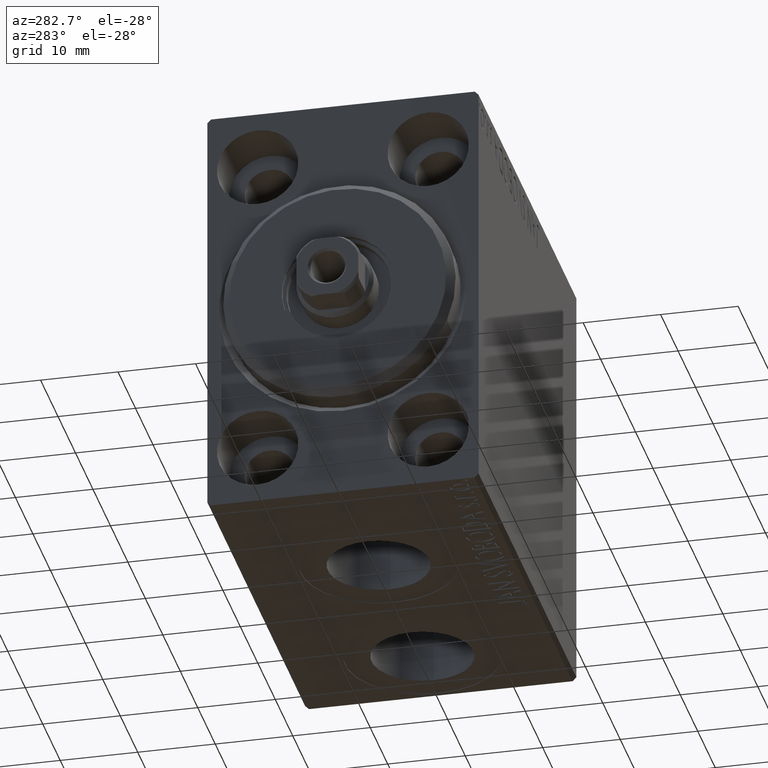
[diagram: clean part render]
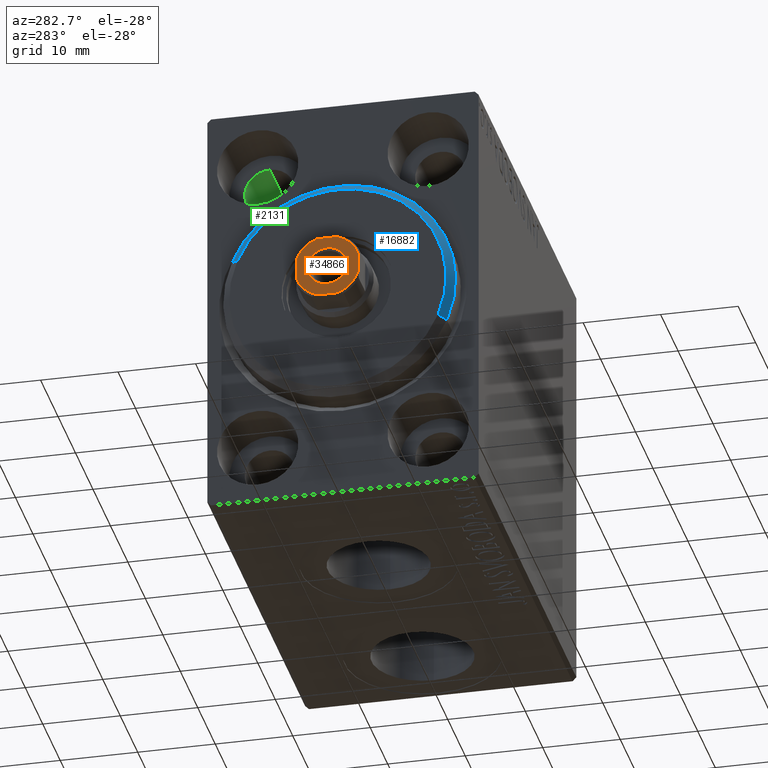
[diagram: same view with three faces highlighted in distinct colors, each labeled with its STEP entity id]
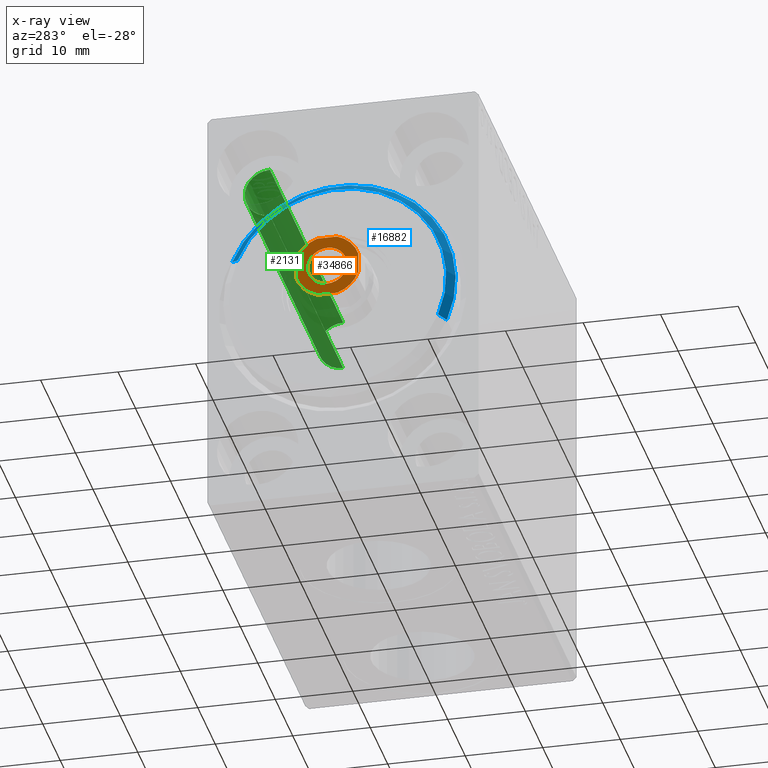
[diagram: x-ray of the same camera — body ghosted, the three highlighted faces saturated]
A machine part, auxiliary view with three faces highlighted in distinct colors.
The next image is the same camera in x-ray (body ghosted, the three faces saturated) — at least one of them is partly hidden behind the body in this view.
Their STEP definitions:

[orange] entity #34866 — the highlighted planar face has unit normal (-1, 0, 0).
#59 = CARTESIAN_POINT ( 'NONE',  ( 0.000000000000000000, 0.000000000000000000, 60.00000000000000000 ) ) ;
#228 = EDGE_LOOP ( 'NONE', ( #32844, #24968 ) ) ;
#1085 = AXIS2_PLACEMENT_3D ( 'NONE', #2974, #6763, #33279 ) ;
#1504 = ORIENTED_EDGE ( 'NONE', *, *, #43617, .T. ) ;
#1800 = DIRECTION ( 'NONE',  ( -1.084202172485504434E-16, 1.000000000000000000, -0.000000000000000000 ) ) ;
#2950 = VECTOR ( 'NONE', #19012, 1000.000000000000000 ) ;
#2974 = CARTESIAN_POINT ( 'NONE',  ( 0.000000000000000000, 0.000000000000000000, 60.00000000000000000 ) ) ;
#3173 = CARTESIAN_POINT ( 'NONE',  ( 4.000000000000001776, -1.280624847486520279, 60.00000000000000000 ) ) ;
#3801 = CIRCLE ( 'NONE', #39343, 4.199999999999985967 ) ;
#4405 = VECTOR ( 'NONE', #27248, 1000.000000000000000 ) ;
#4622 = VECTOR ( 'NONE', #1800, 1000.000000000000000 ) ;
#5967 = CARTESIAN_POINT ( 'NONE',  ( 0.000000000000000000, 0.000000000000000000, 60.00000000000000000 ) ) ;
#5996 = FACE_OUTER_BOUND ( 'NONE', #41414, .T. ) ;
#6103 = CIRCLE ( 'NONE', #36693, 4.200000000000005507 ) ;
#6621 = DIRECTION ( 'NONE',  ( 1.000000000000000000, 0.000000000000000000, 0.000000000000000000 ) ) ;
#6763 = DIRECTION ( 'NONE',  ( -0.000000000000000000, 0.000000000000000000, 1.000000000000000000 ) ) ;
#7134 = CARTESIAN_POINT ( 'NONE',  ( -1.280624847486594442, 3.999999999999998224, 60.00000000000000000 ) ) ;
#7189 = VERTEX_POINT ( 'NONE', #24505 ) ;
#7243 = EDGE_CURVE ( 'NONE', #23258, #43874, #8914, .T. ) ;
#7263 = VERTEX_POINT ( 'NONE', #35877 ) ;
#7332 = AXIS2_PLACEMENT_3D ( 'NONE', #5967, #9294, #6621 ) ;
#7865 = AXIS2_PLACEMENT_3D ( 'NONE', #9476, #22198, #12812 ) ;
#7887 = CARTESIAN_POINT ( 'NONE',  ( 1.280624847486517393, -4.000000000000001776, 60.00000000000000000 ) ) ;
#8001 = ORIENTED_EDGE ( 'NONE', *, *, #11364, .T. ) ;
#8247 = CIRCLE ( 'NONE', #40953, 4.200000000000008171 ) ;
#8371 = VERTEX_POINT ( 'NONE', #3173 ) ;
#8415 = VERTEX_POINT ( 'NONE', #17635 ) ;
#8538 = CARTESIAN_POINT ( 'NONE',  ( 1.280624847486559359, 3.999999999999999112, 60.00000000000000000 ) ) ;
#8914 = LINE ( 'NONE', #11807, #31346 ) ;
#9210 = EDGE_CURVE ( 'NONE', #7189, #30992, #34906, .T. ) ;
#9294 = DIRECTION ( 'NONE',  ( 0.000000000000000000, -0.000000000000000000, -1.000000000000000000 ) ) ;
#9461 = CIRCLE ( 'NONE', #7332, 2.549999999999989608 ) ;
#9476 = CARTESIAN_POINT ( 'NONE',  ( 0.000000000000000000, 0.000000000000000000, 60.00000000000000000 ) ) ;
#10165 = EDGE_CURVE ( 'NONE', #22549, #8415, #15444, .T. ) ;
#11364 = EDGE_CURVE ( 'NONE', #11573, #24837, #16819, .T. ) ;
#11392 = CARTESIAN_POINT ( 'NONE',  ( -2.549999999999989608, 3.122849337825738093E-16, 60.00000000000000000 ) ) ;
#11573 = VERTEX_POINT ( 'NONE', #22506 ) ;
#11807 = CARTESIAN_POINT ( 'NONE',  ( -3.999999999999999112, 3.999999999999998224, 60.00000000000000000 ) ) ;
#12212 = DIRECTION ( 'NONE',  ( -0.000000000000000000, 0.000000000000000000, 1.000000000000000000 ) ) ;
#12812 = DIRECTION ( 'NONE',  ( 1.000000000000000000, 0.000000000000000000, 0.000000000000000000 ) ) ;
#13084 = DIRECTION ( 'NONE',  ( 1.000000000000000000, 0.000000000000000000, 0.000000000000000000 ) ) ;
#13627 = DIRECTION ( 'NONE',  ( 1.000000000000000000, 0.000000000000000000, 0.000000000000000000 ) ) ;
#13853 = CARTESIAN_POINT ( 'NONE',  ( 0.000000000000000000, 0.000000000000000000, 60.00000000000000000 ) ) ;
#15274 = EDGE_CURVE ( 'NONE', #30992, #7189, #9461, .T. ) ;
#15380 = FACE_BOUND ( 'NONE', #228, .T. ) ;
#15444 = LINE ( 'NONE', #25221, #2950 ) ;
#15588 = PLANE ( 'NONE',  #39400 ) ;
#16819 = LINE ( 'NONE', #34160, #4405 ) ;
#17222 = DIRECTION ( 'NONE',  ( -0.000000000000000000, 0.000000000000000000, 1.000000000000000000 ) ) ;
#17635 = CARTESIAN_POINT ( 'NONE',  ( -3.999999999999999112, -1.280624847486601103, 60.00000000000000000 ) ) ;
#18230 = ORIENTED_EDGE ( 'NONE', *, *, #10165, .T. ) ;
#19012 = DIRECTION ( 'NONE',  ( 1.084202172485504434E-16, -1.000000000000000000, 0.000000000000000000 ) ) ;
#19174 = LINE ( 'NONE', #32545, #4622 ) ;
#21351 = ORIENTED_EDGE ( 'NONE', *, *, #37960, .T. ) ;
#22198 = DIRECTION ( 'NONE',  ( 0.000000000000000000, -0.000000000000000000, -1.000000000000000000 ) ) ;
#22506 = CARTESIAN_POINT ( 'NONE',  ( -1.280624847486591555, -4.000000000000001776, 60.00000000000000000 ) ) ;
#22549 = VERTEX_POINT ( 'NONE', #34188 ) ;
#23258 = VERTEX_POINT ( 'NONE', #8538 ) ;
#24505 = CARTESIAN_POINT ( 'NONE',  ( 2.549999999999989608, 0.000000000000000000, 60.00000000000000000 ) ) ;
#24837 = VERTEX_POINT ( 'NONE', #7887 ) ;
#24968 = ORIENTED_EDGE ( 'NONE', *, *, #15274, .T. ) ;
#25221 = CARTESIAN_POINT ( 'NONE',  ( -3.999999999999999112, 3.999999999999998224, 60.00000000000000000 ) ) ;
#25596 = CARTESIAN_POINT ( 'NONE',  ( 0.000000000000000000, 0.000000000000000000, 60.00000000000000000 ) ) ;
#25711 = ORIENTED_EDGE ( 'NONE', *, *, #40772, .T. ) ;
#25776 = EDGE_CURVE ( 'NONE', #7263, #23258, #30961, .T. ) ;
#26254 = ORIENTED_EDGE ( 'NONE', *, *, #25776, .T. ) ;
#27248 = DIRECTION ( 'NONE',  ( 1.000000000000000000, 0.000000000000000000, 0.000000000000000000 ) ) ;
#28451 = ORIENTED_EDGE ( 'NONE', *, *, #7243, .T. ) ;
#29158 = DIRECTION ( 'NONE',  ( -0.000000000000000000, 0.000000000000000000, 1.000000000000000000 ) ) ;
#30776 = DIRECTION ( 'NONE',  ( -0.000000000000000000, 0.000000000000000000, 1.000000000000000000 ) ) ;
#30961 = CIRCLE ( 'NONE', #1085, 4.199999999999995737 ) ;
#30992 = VERTEX_POINT ( 'NONE', #11392 ) ;
#31346 = VECTOR ( 'NONE', #32312, 1000.000000000000000 ) ;
#32312 = DIRECTION ( 'NONE',  ( -1.000000000000000000, -1.084202172485504434E-16, -0.000000000000000000 ) ) ;
#32545 = CARTESIAN_POINT ( 'NONE',  ( 4.000000000000000888, 3.999999999999999112, 60.00000000000000000 ) ) ;
#32575 = EDGE_CURVE ( 'NONE', #24837, #8371, #3801, .T. ) ;
#32844 = ORIENTED_EDGE ( 'NONE', *, *, #9210, .T. ) ;
#33279 = DIRECTION ( 'NONE',  ( 1.000000000000000000, 0.000000000000000000, 0.000000000000000000 ) ) ;
#34160 = CARTESIAN_POINT ( 'NONE',  ( -3.999999999999998224, -4.000000000000001776, 60.00000000000000000 ) ) ;
#34188 = CARTESIAN_POINT ( 'NONE',  ( -3.999999999999999112, 1.280624847486591555, 60.00000000000000000 ) ) ;
#34594 = DIRECTION ( 'NONE',  ( 1.000000000000000000, 0.000000000000000000, 0.000000000000000000 ) ) ;
#34866 = ADVANCED_FACE ( 'NONE', ( #15380, #5996 ), #15588, .T. ) ;
#34906 = CIRCLE ( 'NONE', #7865, 2.549999999999989608 ) ;
#35877 = CARTESIAN_POINT ( 'NONE',  ( 4.000000000000000888, 1.280624847486552031, 60.00000000000000000 ) ) ;
#36077 = DIRECTION ( 'NONE',  ( 1.000000000000000000, 0.000000000000000000, 0.000000000000000000 ) ) ;
#36693 = AXIS2_PLACEMENT_3D ( 'NONE', #13853, #30776, #13627 ) ;
#37781 = ORIENTED_EDGE ( 'NONE', *, *, #32575, .T. ) ;
#37960 = EDGE_CURVE ( 'NONE', #43874, #22549, #6103, .T. ) ;
#39343 = AXIS2_PLACEMENT_3D ( 'NONE', #43589, #12212, #13084 ) ;
#39400 = AXIS2_PLACEMENT_3D ( 'NONE', #25596, #29158, #36077 ) ;
#40772 = EDGE_CURVE ( 'NONE', #8371, #7263, #19174, .T. ) ;
#40953 = AXIS2_PLACEMENT_3D ( 'NONE', #59, #17222, #34594 ) ;
#41414 = EDGE_LOOP ( 'NONE', ( #25711, #26254, #28451, #21351, #18230, #1504, #8001, #37781 ) ) ;
#43589 = CARTESIAN_POINT ( 'NONE',  ( 0.000000000000000000, 0.000000000000000000, 60.00000000000000000 ) ) ;
#43617 = EDGE_CURVE ( 'NONE', #8415, #11573, #8247, .T. ) ;
#43874 = VERTEX_POINT ( 'NONE', #7134 ) ;

[blue] entity #16882 — the highlighted conical surface has half-angle 45 deg.
#736 = AXIS2_PLACEMENT_3D ( 'NONE', #29094, #21536, #4817 ) ;
#1158 = DIRECTION ( 'NONE',  ( -1.000000000000000000, 0.000000000000000000, 0.000000000000000000 ) ) ;
#1615 = VECTOR ( 'NONE', #18366, 999.9999999999998863 ) ;
#3093 = EDGE_CURVE ( 'NONE', #38357, #33130, #22113, .T. ) ;
#4817 = DIRECTION ( 'NONE',  ( 0.000000000000000000, 0.000000000000000000, -1.000000000000000000 ) ) ;
#7279 = DIRECTION ( 'NONE',  ( -0.7071067811865482389, 8.659560562354926695E-17, -0.7071067811865469066 ) ) ;
#8980 = EDGE_CURVE ( 'NONE', #33130, #21298, #30241, .T. ) ;
#9101 = CARTESIAN_POINT ( 'NONE',  ( 3.000000000000000000, 0.000000000000000000, 13.99999999999999645 ) ) ;
#10849 = CIRCLE ( 'NONE', #11583, 15.00000000000000000 ) ;
#10915 = CONICAL_SURFACE ( 'NONE', #41487, 13.99999999999999645, 0.7853981633974473908 ) ;
#11370 = EDGE_LOOP ( 'NONE', ( #36238, #27068, #29171, #35979 ) ) ;
#11583 = AXIS2_PLACEMENT_3D ( 'NONE', #35467, #1158, #28322 ) ;
#12271 = FACE_OUTER_BOUND ( 'NONE', #11370, .T. ) ;
#15721 = VECTOR ( 'NONE', #7279, 999.9999999999998863 ) ;
#16882 = ADVANCED_FACE ( 'NONE', ( #12271 ), #10915, .T. ) ;
#17542 = CARTESIAN_POINT ( 'NONE',  ( 3.000000000000000000, 1.714505518806294244E-15, -13.99999999999999645 ) ) ;
#18366 = DIRECTION ( 'NONE',  ( -0.7071067811865482389, 0.000000000000000000, 0.7071067811865469066 ) ) ;
#21298 = VERTEX_POINT ( 'NONE', #44069 ) ;
#21526 = CARTESIAN_POINT ( 'NONE',  ( 1.999999999999995781, 0.000000000000000000, 15.00000000000000000 ) ) ;
#21536 = DIRECTION ( 'NONE',  ( 1.000000000000000000, -0.000000000000000000, 0.000000000000000000 ) ) ;
#21692 = VERTEX_POINT ( 'NONE', #21526 ) ;
#22113 = CIRCLE ( 'NONE', #736, 13.99999999999999645 ) ;
#26084 = DIRECTION ( 'NONE',  ( 0.000000000000000000, 0.000000000000000000, 1.000000000000000000 ) ) ;
#27068 = ORIENTED_EDGE ( 'NONE', *, *, #3093, .F. ) ;
#28322 = DIRECTION ( 'NONE',  ( 0.000000000000000000, 0.000000000000000000, -1.000000000000000000 ) ) ;
#29094 = CARTESIAN_POINT ( 'NONE',  ( 3.000000000000000000, 0.000000000000000000, 0.000000000000000000 ) ) ;
#29171 = ORIENTED_EDGE ( 'NONE', *, *, #30746, .T. ) ;
#30241 = LINE ( 'NONE', #17542, #15721 ) ;
#30746 = EDGE_CURVE ( 'NONE', #38357, #21692, #41950, .T. ) ;
#30949 = EDGE_CURVE ( 'NONE', #21298, #21692, #10849, .T. ) ;
#31275 = CARTESIAN_POINT ( 'NONE',  ( 3.000000000000000000, 1.775737858763662015E-15, -13.99999999999999645 ) ) ;
#33130 = VERTEX_POINT ( 'NONE', #31275 ) ;
#33220 = CARTESIAN_POINT ( 'NONE',  ( 3.000000000000000000, 0.000000000000000000, 0.000000000000000000 ) ) ;
#35467 = CARTESIAN_POINT ( 'NONE',  ( 1.999999999999995781, 0.000000000000000000, 0.000000000000000000 ) ) ;
#35979 = ORIENTED_EDGE ( 'NONE', *, *, #30949, .F. ) ;
#36238 = ORIENTED_EDGE ( 'NONE', *, *, #8980, .F. ) ;
#38357 = VERTEX_POINT ( 'NONE', #9101 ) ;
#38398 = CARTESIAN_POINT ( 'NONE',  ( 3.000000000000000000, 0.000000000000000000, 13.99999999999999645 ) ) ;
#40307 = DIRECTION ( 'NONE',  ( -1.000000000000000000, 0.000000000000000000, 0.000000000000000000 ) ) ;
#41487 = AXIS2_PLACEMENT_3D ( 'NONE', #33220, #40307, #26084 ) ;
#41950 = LINE ( 'NONE', #38398, #1615 ) ;
#44069 = CARTESIAN_POINT ( 'NONE',  ( 1.999999999999995781, 1.836970198721029589E-15, -15.00000000000000000 ) ) ;

[green] entity #2131 — the highlighted cylindrical surface (edge-blend (fillet) strip) has radius 3.25 mm, axis along (-1, -0, -0).
#1093 = LINE ( 'NONE', #21372, #15846 ) ;
#2131 = ADVANCED_FACE ( 'NONE', ( #34506 ), #26929, .F. ) ;
#2219 = DIRECTION ( 'NONE',  ( -1.000000000000000000, 0.000000000000000000, 0.000000000000000000 ) ) ;
#2267 = CARTESIAN_POINT ( 'NONE',  ( 56.00000000000000000, 11.00000000000000355, 16.75000000000000000 ) ) ;
#2888 = EDGE_CURVE ( 'NONE', #36903, #3099, #27082, .T. ) ;
#3099 = VERTEX_POINT ( 'NONE', #18200 ) ;
#4745 = EDGE_CURVE ( 'NONE', #6774, #14922, #37669, .T. ) ;
#6774 = VERTEX_POINT ( 'NONE', #35036 ) ;
#7179 = ORIENTED_EDGE ( 'NONE', *, *, #13395, .T. ) ;
#9165 = LINE ( 'NONE', #2267, #32351 ) ;
#10652 = DIRECTION ( 'NONE',  ( -1.000000000000000000, -0.000000000000000000, -0.000000000000000000 ) ) ;
#13395 = EDGE_CURVE ( 'NONE', #36903, #6774, #1093, .T. ) ;
#14922 = VERTEX_POINT ( 'NONE', #36360 ) ;
#15846 = VECTOR ( 'NONE', #34738, 1000.000000000000000 ) ;
#16506 = CARTESIAN_POINT ( 'NONE',  ( 49.00000000000000000, 11.00000000000000355, 20.00000000000000000 ) ) ;
#18200 = CARTESIAN_POINT ( 'NONE',  ( 49.00000000000000000, 11.00000000000000355, 16.75000000000000000 ) ) ;
#19340 = EDGE_CURVE ( 'NONE', #3099, #14922, #9165, .T. ) ;
#20929 = DIRECTION ( 'NONE',  ( 0.000000000000000000, 0.000000000000000000, 1.000000000000000000 ) ) ;
#21372 = CARTESIAN_POINT ( 'NONE',  ( 56.00000000000000000, 11.00000000000000355, 23.25000000000000000 ) ) ;
#26929 = CYLINDRICAL_SURFACE ( 'NONE', #41945, 3.249999999999999556 ) ;
#27082 = CIRCLE ( 'NONE', #32049, 3.249999999999999556 ) ;
#29682 = CARTESIAN_POINT ( 'NONE',  ( 49.00000000000000000, 11.00000000000000355, 23.25000000000000000 ) ) ;
#31959 = ORIENTED_EDGE ( 'NONE', *, *, #4745, .T. ) ;
#32049 = AXIS2_PLACEMENT_3D ( 'NONE', #16506, #43649, #40304 ) ;
#32351 = VECTOR ( 'NONE', #36343, 1000.000000000000000 ) ;
#34222 = EDGE_LOOP ( 'NONE', ( #42637, #39457, #7179, #31959 ) ) ;
#34506 = FACE_OUTER_BOUND ( 'NONE', #34222, .T. ) ;
#34738 = DIRECTION ( 'NONE',  ( -1.000000000000000000, -0.000000000000000000, -0.000000000000000000 ) ) ;
#35036 = CARTESIAN_POINT ( 'NONE',  ( 6.999999999999999112, 11.00000000000000355, 23.25000000000000000 ) ) ;
#36343 = DIRECTION ( 'NONE',  ( -1.000000000000000000, -0.000000000000000000, -0.000000000000000000 ) ) ;
#36360 = CARTESIAN_POINT ( 'NONE',  ( 6.999999999999999112, 11.00000000000000355, 16.75000000000000000 ) ) ;
#36903 = VERTEX_POINT ( 'NONE', #29682 ) ;
#37669 = CIRCLE ( 'NONE', #38364, 3.249999999999999556 ) ;
#38364 = AXIS2_PLACEMENT_3D ( 'NONE', #42740, #2219, #43188 ) ;
#39457 = ORIENTED_EDGE ( 'NONE', *, *, #2888, .F. ) ;
#40304 = DIRECTION ( 'NONE',  ( 0.000000000000000000, 0.000000000000000000, -1.000000000000000000 ) ) ;
#40499 = CARTESIAN_POINT ( 'NONE',  ( 56.00000000000000000, 11.00000000000000355, 20.00000000000000000 ) ) ;
#41945 = AXIS2_PLACEMENT_3D ( 'NONE', #40499, #10652, #20929 ) ;
#42637 = ORIENTED_EDGE ( 'NONE', *, *, #19340, .F. ) ;
#42740 = CARTESIAN_POINT ( 'NONE',  ( 6.999999999999999112, 11.00000000000000355, 20.00000000000000000 ) ) ;
#43188 = DIRECTION ( 'NONE',  ( 0.000000000000000000, 0.000000000000000000, 1.000000000000000000 ) ) ;
#43649 = DIRECTION ( 'NONE',  ( -1.000000000000000000, -0.000000000000000000, -0.000000000000000000 ) ) ;